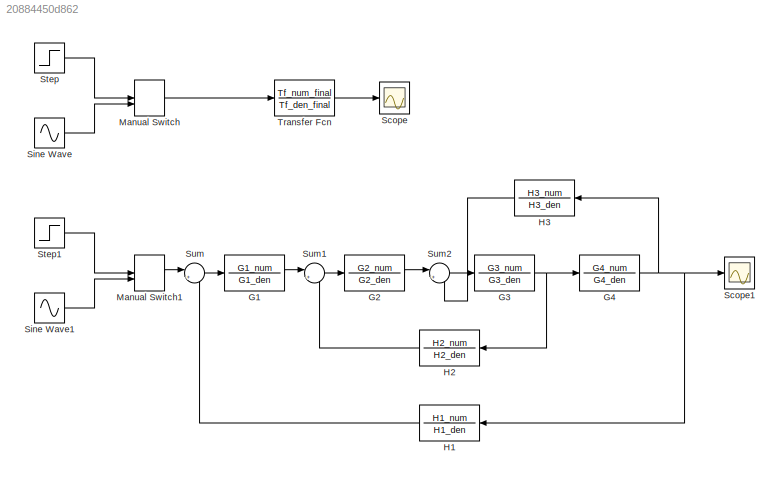
MODEL slx_20884450d862
KIND model
CONFIG AbsTol = auto
CONFIG EnableMultiTasking = off
CONFIG FixedStep = auto
CONFIG MaxStep = auto
CONFIG MinStep = auto
CONFIG RelTol = 1e-3
CONFIG SampleTimeConstraint = Unconstrained
CONFIG SolverName = VariableStepAuto
CONFIG StartTime = 0.0
CONFIG StopTime = 10.0
BLOCK [TransferFcn] G1
  Denominator = G1_den
  Numerator = G1_num
BLOCK [TransferFcn] G2
  Denominator = G2_den
  Numerator = G2_num
BLOCK [TransferFcn] G3
  Denominator = G3_den
  Numerator = G3_num
BLOCK [TransferFcn] G4
  Denominator = G4_den
  Numerator = G4_num
BLOCK [TransferFcn] H1
  Denominator = H1_den
  Numerator = H1_num
BLOCK [TransferFcn] H2
  Denominator = H2_den
  Numerator = H2_num
BLOCK [TransferFcn] H3
  Denominator = H3_den
  Numerator = H3_num
BLOCK [ManualSwitch] Manual Switch
BLOCK [ManualSwitch] Manual Switch1
BLOCK [Scope] Scope
  Floating = off
  NumInputPorts = 1
  ScopeSpecificationString = Simulink.scopes.TimeScopeBlockCfg('CurrentConfiguration', extmgr.ConfigurationSet(extmgr.Configuration('Core','General UI',true),extmgr.Configuration('Core','Source UI',true),extmgr.Configuration('Sources','WiredSimulink',true),extmgr.Configuration('Visuals','Time Domain',true,'SerializedDisplays',{struct('MinYLimReal','-20122.67798','MaxYLimReal','2236.88416','YLabelReal','','MinYLimMag','   0.00...<+1360ch>
BLOCK [Scope] Scope1
  Floating = off
  NumInputPorts = 1
  ScopeSpecificationString = Simulink.scopes.TimeScopeBlockCfg('CurrentConfiguration', extmgr.ConfigurationSet(extmgr.Configuration('Core','General UI',true),extmgr.Configuration('Core','Source UI',true),extmgr.Configuration('Sources','WiredSimulink',true,'DataLoggingVariableName','ScopeData1'),extmgr.Configuration('Visuals','Time Domain',true,'SerializedDisplays',{struct('MinYLimReal','-20122.67798','MaxYLimReal','2236.88416...<+1389ch>
BLOCK [Sin] Sine Wave
  SampleTime = 0
BLOCK [Sin] Sine Wave1
  SampleTime = 0
BLOCK [Step] Step
  SampleTime = 0
BLOCK [Step] Step1
  SampleTime = 0
BLOCK [Sum] Sum
  Inputs = |+-
BLOCK [Sum] Sum1
  Inputs = |+-
BLOCK [Sum] Sum2
  Inputs = |+-
BLOCK [TransferFcn] Transfer Fcn
  Denominator = Tf_den_final
  Numerator = Tf_num_final
LINE G1:1 -> Sum1:1
LINE G2:1 -> Sum2:1
NET G3:1 -> G4:1, H2:1
NET G4:1 -> H1:1, H3:1, Scope1:1
LINE H1:1 -> Sum:2
LINE H2:1 -> Sum1:2
LINE H3:1 -> Sum2:2
LINE Manual Switch1:1 -> Sum:1
LINE Manual Switch:1 -> Transfer Fcn:1
LINE Sine Wave1:1 -> Manual Switch1:2
LINE Sine Wave:1 -> Manual Switch:2
LINE Step1:1 -> Manual Switch1:1
LINE Step:1 -> Manual Switch:1
LINE Sum1:1 -> G2:1
LINE Sum2:1 -> G3:1
LINE Sum:1 -> G1:1
LINE Transfer Fcn:1 -> Scope:1
note: NET lines group one-source signal fan-out (src -> all destinations, sorted); 1:1 wires keep LINE
